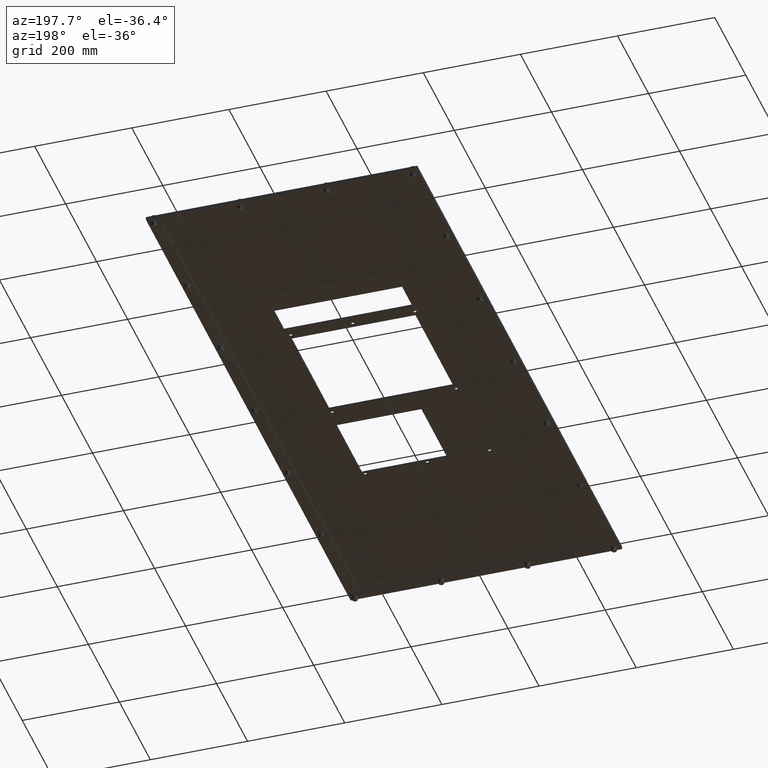
[diagram: clean part render]
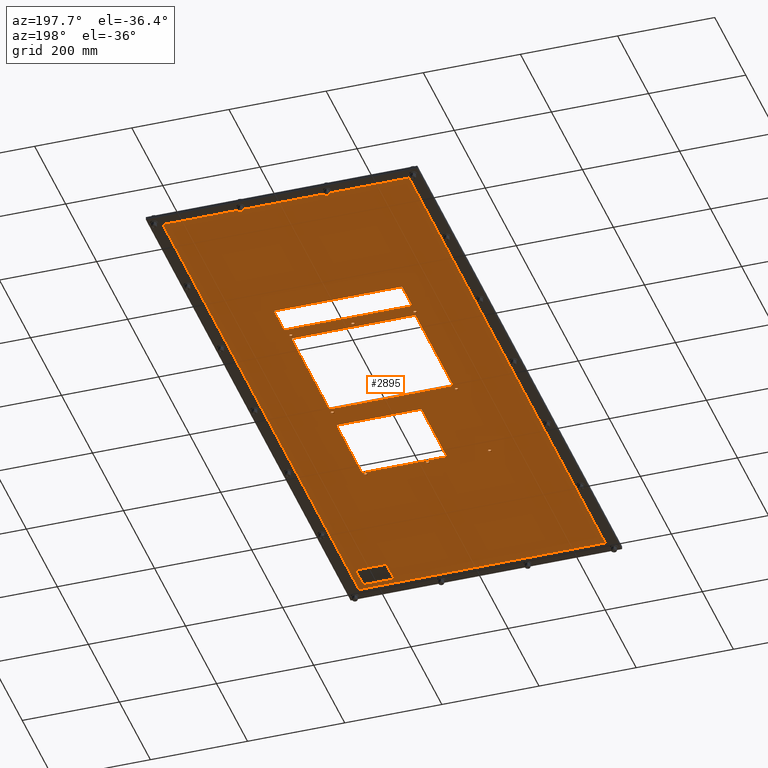
[diagram: same view with one face highlighted and labeled with its STEP entity id]
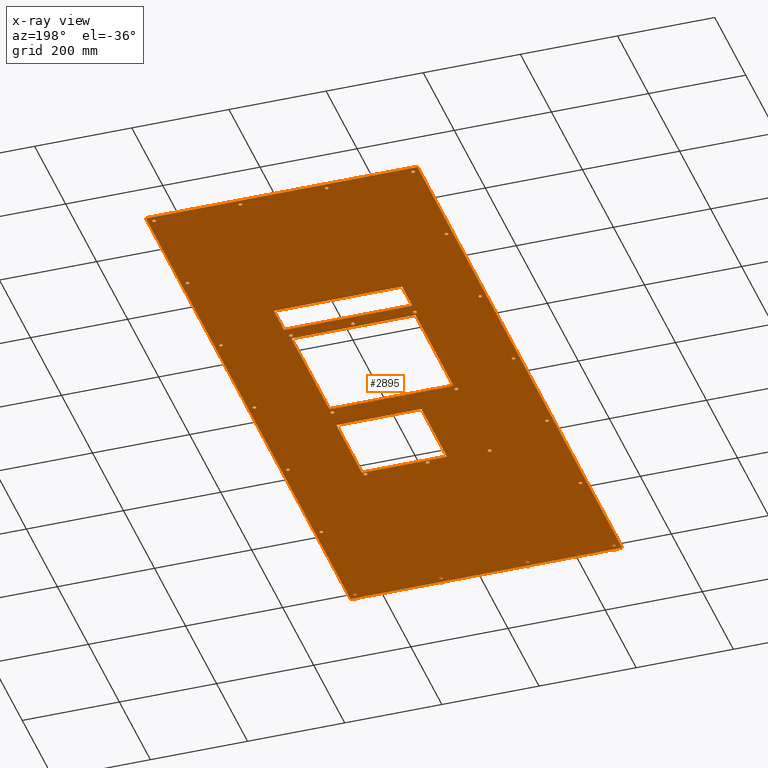
[diagram: x-ray of the same camera — body ghosted, the highlighted face saturated]
A machine part, auxiliary view. The second image highlights one B-rep face of the part: STEP entity #2895.
The next image is the same camera in x-ray: the body ghosted, the highlighted face saturated — about 0% of this face is hidden behind the body in this view.
In plain terms, the highlighted planar face has unit normal (0, 0, 1).
Its self-contained STEP definition (entity closure, byte-faithful):
#228=FACE_BOUND('',#813,.T.);
#229=FACE_BOUND('',#814,.T.);
#230=FACE_BOUND('',#815,.T.);
#231=FACE_BOUND('',#816,.T.);
#232=FACE_BOUND('',#817,.T.);
#233=FACE_BOUND('',#818,.T.);
#234=FACE_BOUND('',#819,.T.);
#235=FACE_BOUND('',#820,.T.);
#236=FACE_BOUND('',#821,.T.);
#237=FACE_BOUND('',#822,.T.);
#238=FACE_BOUND('',#823,.T.);
#239=FACE_BOUND('',#824,.T.);
#240=FACE_BOUND('',#825,.T.);
#241=FACE_BOUND('',#826,.T.);
#242=FACE_BOUND('',#827,.T.);
#243=FACE_BOUND('',#828,.T.);
#244=FACE_BOUND('',#829,.T.);
#245=FACE_BOUND('',#830,.T.);
#246=FACE_BOUND('',#831,.T.);
#247=FACE_BOUND('',#832,.T.);
#248=FACE_BOUND('',#833,.T.);
#249=FACE_BOUND('',#834,.T.);
#250=FACE_BOUND('',#835,.T.);
#251=FACE_BOUND('',#836,.T.);
#252=FACE_BOUND('',#837,.T.);
#253=FACE_BOUND('',#838,.T.);
#254=FACE_BOUND('',#839,.T.);
#255=FACE_BOUND('',#840,.T.);
#256=FACE_BOUND('',#841,.T.);
#345=CIRCLE('',#3034,0.15625);
#347=CIRCLE('',#3037,0.15625);
#349=CIRCLE('',#3040,0.15625);
#351=CIRCLE('',#3043,0.15625);
#353=CIRCLE('',#3046,0.15625);
#355=CIRCLE('',#3049,0.15625);
#357=CIRCLE('',#3052,0.15625);
#359=CIRCLE('',#3055,0.15625);
#362=CIRCLE('',#3059,0.140625);
#364=CIRCLE('',#3062,0.140625);
#366=CIRCLE('',#3065,0.140625);
#368=CIRCLE('',#3068,0.140625);
#370=CIRCLE('',#3071,0.140625);
#372=CIRCLE('',#3074,0.140625);
#374=CIRCLE('',#3077,0.140625);
#376=CIRCLE('',#3080,0.140625);
#378=CIRCLE('',#3083,0.140625);
#380=CIRCLE('',#3086,0.140625);
#382=CIRCLE('',#3089,0.140625);
#384=CIRCLE('',#3092,0.140625);
#386=CIRCLE('',#3095,0.140625);
#388=CIRCLE('',#3098,0.140625);
#390=CIRCLE('',#3101,0.140625);
#392=CIRCLE('',#3104,0.140625);
#394=CIRCLE('',#3107,0.140625);
#396=CIRCLE('',#3110,0.140625);
#596=FACE_OUTER_BOUND('',#812,.T.);
#812=EDGE_LOOP('',(#2132,#2133,#2134,#2135));
#813=EDGE_LOOP('',(#2136,#2137,#2138,#2139));
#814=EDGE_LOOP('',(#2140,#2141,#2142,#2143));
#815=EDGE_LOOP('',(#2144,#2145,#2146,#2147));
#816=EDGE_LOOP('',(#2148));
#817=EDGE_LOOP('',(#2149));
#818=EDGE_LOOP('',(#2150));
#819=EDGE_LOOP('',(#2151));
#820=EDGE_LOOP('',(#2152));
#821=EDGE_LOOP('',(#2153));
#822=EDGE_LOOP('',(#2154));
#823=EDGE_LOOP('',(#2155));
#824=EDGE_LOOP('',(#2156));
#825=EDGE_LOOP('',(#2157));
#826=EDGE_LOOP('',(#2158));
#827=EDGE_LOOP('',(#2159));
#828=EDGE_LOOP('',(#2160));
#829=EDGE_LOOP('',(#2161));
#830=EDGE_LOOP('',(#2162));
#831=EDGE_LOOP('',(#2163));
#832=EDGE_LOOP('',(#2164));
#833=EDGE_LOOP('',(#2165));
#834=EDGE_LOOP('',(#2166));
#835=EDGE_LOOP('',(#2167));
#836=EDGE_LOOP('',(#2168));
#837=EDGE_LOOP('',(#2169));
#838=EDGE_LOOP('',(#2170));
#839=EDGE_LOOP('',(#2171));
#840=EDGE_LOOP('',(#2172));
#841=EDGE_LOOP('',(#2173));
#1047=LINE('',#4206,#1212);
#1051=LINE('',#4214,#1216);
#1054=LINE('',#4220,#1219);
#1057=LINE('',#4225,#1222);
#1059=LINE('',#4230,#1224);
#1063=LINE('',#4238,#1228);
#1066=LINE('',#4244,#1231);
#1069=LINE('',#4249,#1234);
#1071=LINE('',#4254,#1236);
#1075=LINE('',#4262,#1240);
#1078=LINE('',#4268,#1243);
#1081=LINE('',#4273,#1246);
#1085=LINE('',#4412,#1250);
#1089=LINE('',#4419,#1254);
#1092=LINE('',#4425,#1257);
#1094=LINE('',#4428,#1259);
#1212=VECTOR('',#3363,9.65);
#1216=VECTOR('',#3369,10.06);
#1219=VECTOR('',#3374,9.65);
#1222=VECTOR('',#3379,10.06);
#1224=VECTOR('',#3383,6.5);
#1228=VECTOR('',#3389,6.9);
#1231=VECTOR('',#3394,6.5);
#1234=VECTOR('',#3399,6.9);
#1236=VECTOR('',#3403,2.6);
#1240=VECTOR('',#3409,10.39);
#1243=VECTOR('',#3414,2.6);
#1246=VECTOR('',#3419,10.39);
#1250=VECTOR('',#3581,52.);
#1254=VECTOR('',#3587,22.);
#1257=VECTOR('',#3592,52.);
#1259=VECTOR('',#3596,22.);
#1377=VERTEX_POINT('',#4204);
#1378=VERTEX_POINT('',#4205);
#1381=VERTEX_POINT('',#4213);
#1383=VERTEX_POINT('',#4219);
#1385=VERTEX_POINT('',#4228);
#1386=VERTEX_POINT('',#4229);
#1389=VERTEX_POINT('',#4237);
#1391=VERTEX_POINT('',#4243);
#1393=VERTEX_POINT('',#4252);
#1394=VERTEX_POINT('',#4253);
#1397=VERTEX_POINT('',#4261);
#1399=VERTEX_POINT('',#4267);
#1401=VERTEX_POINT('',#4276);
#1403=VERTEX_POINT('',#4281);
#1405=VERTEX_POINT('',#4286);
#1407=VERTEX_POINT('',#4291);
#1409=VERTEX_POINT('',#4296);
#1411=VERTEX_POINT('',#4301);
#1413=VERTEX_POINT('',#4306);
#1415=VERTEX_POINT('',#4311);
#1418=VERTEX_POINT('',#4318);
#1420=VERTEX_POINT('',#4323);
#1422=VERTEX_POINT('',#4328);
#1424=VERTEX_POINT('',#4333);
#1426=VERTEX_POINT('',#4338);
#1428=VERTEX_POINT('',#4343);
#1430=VERTEX_POINT('',#4348);
#1432=VERTEX_POINT('',#4353);
#1434=VERTEX_POINT('',#4358);
#1436=VERTEX_POINT('',#4363);
#1438=VERTEX_POINT('',#4368);
#1440=VERTEX_POINT('',#4373);
#1442=VERTEX_POINT('',#4378);
#1444=VERTEX_POINT('',#4383);
#1446=VERTEX_POINT('',#4388);
#1448=VERTEX_POINT('',#4393);
#1450=VERTEX_POINT('',#4398);
#1452=VERTEX_POINT('',#4403);
#1455=VERTEX_POINT('',#4409);
#1456=VERTEX_POINT('',#4411);
#1458=VERTEX_POINT('',#4417);
#1460=VERTEX_POINT('',#4423);
#1637=EDGE_CURVE('',#1377,#1378,#1047,.T.);
#1641=EDGE_CURVE('',#1378,#1381,#1051,.T.);
#1644=EDGE_CURVE('',#1381,#1383,#1054,.T.);
#1647=EDGE_CURVE('',#1383,#1377,#1057,.T.);
#1649=EDGE_CURVE('',#1385,#1386,#1059,.T.);
#1653=EDGE_CURVE('',#1386,#1389,#1063,.T.);
#1656=EDGE_CURVE('',#1389,#1391,#1066,.T.);
#1659=EDGE_CURVE('',#1391,#1385,#1069,.T.);
#1661=EDGE_CURVE('',#1393,#1394,#1071,.T.);
#1665=EDGE_CURVE('',#1394,#1397,#1075,.T.);
#1668=EDGE_CURVE('',#1397,#1399,#1078,.T.);
#1671=EDGE_CURVE('',#1399,#1393,#1081,.T.);
#1673=EDGE_CURVE('',#1401,#1401,#345,.T.);
#1675=EDGE_CURVE('',#1403,#1403,#347,.T.);
#1677=EDGE_CURVE('',#1405,#1405,#349,.T.);
#1679=EDGE_CURVE('',#1407,#1407,#351,.T.);
#1681=EDGE_CURVE('',#1409,#1409,#353,.T.);
#1683=EDGE_CURVE('',#1411,#1411,#355,.T.);
#1685=EDGE_CURVE('',#1413,#1413,#357,.T.);
#1687=EDGE_CURVE('',#1415,#1415,#359,.T.);
#1690=EDGE_CURVE('',#1418,#1418,#362,.T.);
#1692=EDGE_CURVE('',#1420,#1420,#364,.T.);
#1694=EDGE_CURVE('',#1422,#1422,#366,.T.);
#1696=EDGE_CURVE('',#1424,#1424,#368,.T.);
#1698=EDGE_CURVE('',#1426,#1426,#370,.T.);
#1700=EDGE_CURVE('',#1428,#1428,#372,.T.);
#1702=EDGE_CURVE('',#1430,#1430,#374,.T.);
#1704=EDGE_CURVE('',#1432,#1432,#376,.T.);
#1706=EDGE_CURVE('',#1434,#1434,#378,.T.);
#1708=EDGE_CURVE('',#1436,#1436,#380,.T.);
#1710=EDGE_CURVE('',#1438,#1438,#382,.T.);
#1712=EDGE_CURVE('',#1440,#1440,#384,.T.);
#1714=EDGE_CURVE('',#1442,#1442,#386,.T.);
#1716=EDGE_CURVE('',#1444,#1444,#388,.T.);
#1718=EDGE_CURVE('',#1446,#1446,#390,.T.);
#1720=EDGE_CURVE('',#1448,#1448,#392,.T.);
#1722=EDGE_CURVE('',#1450,#1450,#394,.T.);
#1724=EDGE_CURVE('',#1452,#1452,#396,.T.);
#1727=EDGE_CURVE('',#1456,#1455,#1085,.T.);
#1731=EDGE_CURVE('',#1455,#1458,#1089,.T.);
#1734=EDGE_CURVE('',#1458,#1460,#1092,.T.);
#1736=EDGE_CURVE('',#1460,#1456,#1094,.T.);
#2132=ORIENTED_EDGE('',*,*,#1736,.T.);
#2133=ORIENTED_EDGE('',*,*,#1727,.T.);
#2134=ORIENTED_EDGE('',*,*,#1731,.T.);
#2135=ORIENTED_EDGE('',*,*,#1734,.T.);
#2136=ORIENTED_EDGE('',*,*,#1637,.T.);
#2137=ORIENTED_EDGE('',*,*,#1641,.T.);
#2138=ORIENTED_EDGE('',*,*,#1644,.T.);
#2139=ORIENTED_EDGE('',*,*,#1647,.T.);
#2140=ORIENTED_EDGE('',*,*,#1649,.T.);
#2141=ORIENTED_EDGE('',*,*,#1653,.T.);
#2142=ORIENTED_EDGE('',*,*,#1656,.T.);
#2143=ORIENTED_EDGE('',*,*,#1659,.T.);
#2144=ORIENTED_EDGE('',*,*,#1661,.T.);
#2145=ORIENTED_EDGE('',*,*,#1665,.T.);
#2146=ORIENTED_EDGE('',*,*,#1668,.T.);
#2147=ORIENTED_EDGE('',*,*,#1671,.T.);
#2148=ORIENTED_EDGE('',*,*,#1673,.T.);
#2149=ORIENTED_EDGE('',*,*,#1675,.T.);
#2150=ORIENTED_EDGE('',*,*,#1677,.T.);
#2151=ORIENTED_EDGE('',*,*,#1679,.T.);
#2152=ORIENTED_EDGE('',*,*,#1681,.T.);
#2153=ORIENTED_EDGE('',*,*,#1683,.T.);
#2154=ORIENTED_EDGE('',*,*,#1685,.T.);
#2155=ORIENTED_EDGE('',*,*,#1687,.T.);
#2156=ORIENTED_EDGE('',*,*,#1690,.T.);
#2157=ORIENTED_EDGE('',*,*,#1692,.T.);
#2158=ORIENTED_EDGE('',*,*,#1694,.T.);
#2159=ORIENTED_EDGE('',*,*,#1696,.T.);
#2160=ORIENTED_EDGE('',*,*,#1698,.T.);
#2161=ORIENTED_EDGE('',*,*,#1700,.T.);
#2162=ORIENTED_EDGE('',*,*,#1702,.T.);
#2163=ORIENTED_EDGE('',*,*,#1704,.T.);
#2164=ORIENTED_EDGE('',*,*,#1706,.T.);
#2165=ORIENTED_EDGE('',*,*,#1708,.T.);
#2166=ORIENTED_EDGE('',*,*,#1710,.T.);
#2167=ORIENTED_EDGE('',*,*,#1712,.T.);
#2168=ORIENTED_EDGE('',*,*,#1714,.T.);
#2169=ORIENTED_EDGE('',*,*,#1716,.T.);
#2170=ORIENTED_EDGE('',*,*,#1718,.T.);
#2171=ORIENTED_EDGE('',*,*,#1720,.T.);
#2172=ORIENTED_EDGE('',*,*,#1722,.T.);
#2173=ORIENTED_EDGE('',*,*,#1724,.T.);
#2665=PLANE('',#3116);
#2895=ADVANCED_FACE('',(#596,#228,#229,#230,#231,#232,#233,#234,#235,#236,
#237,#238,#239,#240,#241,#242,#243,#244,#245,#246,#247,#248,#249,#250,#251,
#252,#253,#254,#255,#256),#2665,.F.);
#3034=AXIS2_PLACEMENT_3D('',#4277,#3423,#3424);
#3037=AXIS2_PLACEMENT_3D('',#4282,#3429,#3430);
#3040=AXIS2_PLACEMENT_3D('',#4287,#3435,#3436);
#3043=AXIS2_PLACEMENT_3D('',#4292,#3441,#3442);
#3046=AXIS2_PLACEMENT_3D('',#4297,#3447,#3448);
#3049=AXIS2_PLACEMENT_3D('',#4302,#3453,#3454);
#3052=AXIS2_PLACEMENT_3D('',#4307,#3459,#3460);
#3055=AXIS2_PLACEMENT_3D('',#4312,#3465,#3466);
#3059=AXIS2_PLACEMENT_3D('',#4319,#3473,#3474);
#3062=AXIS2_PLACEMENT_3D('',#4324,#3479,#3480);
#3065=AXIS2_PLACEMENT_3D('',#4329,#3485,#3486);
#3068=AXIS2_PLACEMENT_3D('',#4334,#3491,#3492);
#3071=AXIS2_PLACEMENT_3D('',#4339,#3497,#3498);
#3074=AXIS2_PLACEMENT_3D('',#4344,#3503,#3504);
#3077=AXIS2_PLACEMENT_3D('',#4349,#3509,#3510);
#3080=AXIS2_PLACEMENT_3D('',#4354,#3515,#3516);
#3083=AXIS2_PLACEMENT_3D('',#4359,#3521,#3522);
#3086=AXIS2_PLACEMENT_3D('',#4364,#3527,#3528);
#3089=AXIS2_PLACEMENT_3D('',#4369,#3533,#3534);
#3092=AXIS2_PLACEMENT_3D('',#4374,#3539,#3540);
#3095=AXIS2_PLACEMENT_3D('',#4379,#3545,#3546);
#3098=AXIS2_PLACEMENT_3D('',#4384,#3551,#3552);
#3101=AXIS2_PLACEMENT_3D('',#4389,#3557,#3558);
#3104=AXIS2_PLACEMENT_3D('',#4394,#3563,#3564);
#3107=AXIS2_PLACEMENT_3D('',#4399,#3569,#3570);
#3110=AXIS2_PLACEMENT_3D('',#4404,#3575,#3576);
#3116=AXIS2_PLACEMENT_3D('',#4430,#3599,#3600);
#3363=DIRECTION('',(2.89887289690384E-16,-1.,0.));
#3369=DIRECTION('',(1.,1.73795498602895E-16,0.));
#3374=DIRECTION('',(2.17415467267788E-16,1.,0.));
#3379=DIRECTION('',(-1.,0.,0.));
#3383=DIRECTION('',(4.30371130078801E-16,-1.,0.));
#3389=DIRECTION('',(1.,2.0271103952987E-16,0.));
#3394=DIRECTION('',(-2.151855650394E-16,1.,0.));
#3399=DIRECTION('',(-1.,-2.0271103952987E-16,0.));
#3403=DIRECTION('',(5.37963912598501E-16,-1.,0.));
#3409=DIRECTION('',(1.,0.,0.));
#3414=DIRECTION('',(-2.6898195629925E-16,1.,0.));
#3419=DIRECTION('',(-1.,-2.69240841723985E-16,0.));
#3423=DIRECTION('center_axis',(0.,0.,1.));
#3424=DIRECTION('ref_axis',(-1.,0.,0.));
#3429=DIRECTION('center_axis',(0.,0.,1.));
#3430=DIRECTION('ref_axis',(-1.,0.,0.));
#3435=DIRECTION('center_axis',(0.,0.,1.));
#3436=DIRECTION('ref_axis',(-1.,0.,0.));
#3441=DIRECTION('center_axis',(0.,0.,1.));
#3442=DIRECTION('ref_axis',(-1.,0.,0.));
#3447=DIRECTION('center_axis',(0.,0.,1.));
#3448=DIRECTION('ref_axis',(-1.,0.,0.));
#3453=DIRECTION('center_axis',(0.,0.,1.));
#3454=DIRECTION('ref_axis',(-1.,0.,0.));
#3459=DIRECTION('center_axis',(0.,0.,1.));
#3460=DIRECTION('ref_axis',(-1.,0.,0.));
#3465=DIRECTION('center_axis',(0.,0.,1.));
#3466=DIRECTION('ref_axis',(-1.,0.,0.));
#3473=DIRECTION('center_axis',(0.,0.,1.));
#3474=DIRECTION('ref_axis',(1.,0.,0.));
#3479=DIRECTION('center_axis',(0.,0.,1.));
#3480=DIRECTION('ref_axis',(1.,0.,0.));
#3485=DIRECTION('center_axis',(0.,0.,1.));
#3486=DIRECTION('ref_axis',(1.,0.,0.));
#3491=DIRECTION('center_axis',(0.,0.,1.));
#3492=DIRECTION('ref_axis',(1.,0.,0.));
#3497=DIRECTION('center_axis',(0.,0.,1.));
#3498=DIRECTION('ref_axis',(1.,0.,0.));
#3503=DIRECTION('center_axis',(0.,0.,1.));
#3504=DIRECTION('ref_axis',(1.,0.,0.));
#3509=DIRECTION('center_axis',(0.,0.,1.));
#3510=DIRECTION('ref_axis',(1.,0.,0.));
#3515=DIRECTION('center_axis',(0.,0.,1.));
#3516=DIRECTION('ref_axis',(1.,0.,0.));
#3521=DIRECTION('center_axis',(0.,0.,1.));
#3522=DIRECTION('ref_axis',(1.,0.,0.));
#3527=DIRECTION('center_axis',(0.,0.,1.));
#3528=DIRECTION('ref_axis',(1.,0.,0.));
#3533=DIRECTION('center_axis',(0.,0.,1.));
#3534=DIRECTION('ref_axis',(1.,0.,0.));
#3539=DIRECTION('center_axis',(0.,0.,1.));
#3540=DIRECTION('ref_axis',(1.,0.,0.));
#3545=DIRECTION('center_axis',(0.,0.,1.));
#3546=DIRECTION('ref_axis',(1.,0.,0.));
#3551=DIRECTION('center_axis',(0.,0.,1.));
#3552=DIRECTION('ref_axis',(1.,0.,0.));
#3557=DIRECTION('center_axis',(0.,0.,1.));
#3558=DIRECTION('ref_axis',(1.,0.,0.));
#3563=DIRECTION('center_axis',(0.,0.,1.));
#3564=DIRECTION('ref_axis',(1.,0.,0.));
#3569=DIRECTION('center_axis',(0.,0.,1.));
#3570=DIRECTION('ref_axis',(1.,0.,0.));
#3575=DIRECTION('center_axis',(0.,0.,1.));
#3576=DIRECTION('ref_axis',(1.,0.,0.));
#3581=DIRECTION('',(5.37963912598501E-17,-1.,0.));
#3587=DIRECTION('',(-1.,0.,0.));
#3592=DIRECTION('',(-2.151855650394E-16,1.,0.));
#3596=DIRECTION('',(1.,0.,0.));
#3599=DIRECTION('center_axis',(0.,0.,1.));
#3600=DIRECTION('ref_axis',(1.,0.,0.));
#4204=CARTESIAN_POINT('',(-5.,7.685,-4.37095678986282E-17));
#4205=CARTESIAN_POINT('',(-5.,-1.965,-4.37095678986282E-17));
#4206=CARTESIAN_POINT('',(-5.,3.8425,0.));
#4213=CARTESIAN_POINT('',(5.06,-1.965,-4.37095678986282E-17));
#4214=CARTESIAN_POINT('',(-2.5,-1.965,0.));
#4219=CARTESIAN_POINT('',(5.06000000000001,7.685,-4.37095678986282E-17));
#4220=CARTESIAN_POINT('',(5.06,-0.982500000000001,0.));
#4225=CARTESIAN_POINT('',(2.53,7.685,0.));
#4228=CARTESIAN_POINT('',(-1.72,-4.105,-2.18547839493141E-17));
#4229=CARTESIAN_POINT('',(-1.72,-10.605,-2.18547839493141E-17));
#4230=CARTESIAN_POINT('',(-1.72,-2.0525,0.));
#4237=CARTESIAN_POINT('',(5.18,-10.605,-2.18547839493141E-17));
#4238=CARTESIAN_POINT('',(-0.859999999999997,-10.605,0.));
#4243=CARTESIAN_POINT('',(5.18,-4.105,-2.18547839493141E-17));
#4244=CARTESIAN_POINT('',(5.18,-5.3025,0.));
#4249=CARTESIAN_POINT('',(2.59,-4.105,0.));
#4252=CARTESIAN_POINT('',(-5.14,11.525,0.));
#4253=CARTESIAN_POINT('',(-5.14,8.925,0.));
#4254=CARTESIAN_POINT('',(-5.14,5.7625,0.));
#4261=CARTESIAN_POINT('',(5.25,8.925,0.));
#4262=CARTESIAN_POINT('',(-2.57,8.925,0.));
#4267=CARTESIAN_POINT('',(5.25,11.525,0.));
#4268=CARTESIAN_POINT('',(5.25,4.4625,0.));
#4273=CARTESIAN_POINT('',(2.625,11.525,0.));
#4276=CARTESIAN_POINT('',(5.12624999999999,8.055,0.));
#4277=CARTESIAN_POINT('Origin',(4.96999999999999,8.055,0.));
#4281=CARTESIAN_POINT('',(0.0962499999999921,8.055,0.));
#4282=CARTESIAN_POINT('Origin',(-0.0600000000000082,8.055,0.));
#4286=CARTESIAN_POINT('',(-4.93375000000001,8.055,0.));
#4287=CARTESIAN_POINT('Origin',(-5.09000000000001,8.055,0.));
#4291=CARTESIAN_POINT('',(5.12625,-2.465,0.));
#4292=CARTESIAN_POINT('Origin',(4.97,-2.465,0.));
#4296=CARTESIAN_POINT('',(-4.93375,-2.465,0.));
#4297=CARTESIAN_POINT('Origin',(-5.09,-2.465,0.));
#4301=CARTESIAN_POINT('',(-4.93375,-10.885,0.));
#4302=CARTESIAN_POINT('Origin',(-5.09,-10.885,0.));
#4306=CARTESIAN_POINT('',(0.0962500000000033,-10.885,0.));
#4307=CARTESIAN_POINT('Origin',(-0.0599999999999971,-10.885,0.));
#4311=CARTESIAN_POINT('',(5.12625,-10.885,0.));
#4312=CARTESIAN_POINT('Origin',(4.97,-10.885,0.));
#4318=CARTESIAN_POINT('',(10.640625,-25.5,0.));
#4319=CARTESIAN_POINT('Origin',(10.5,-25.5,0.));
#4323=CARTESIAN_POINT('',(3.640625,-25.5,0.));
#4324=CARTESIAN_POINT('Origin',(3.5,-25.5,0.));
#4328=CARTESIAN_POINT('',(-3.359375,-25.5,0.));
#4329=CARTESIAN_POINT('Origin',(-3.5,-25.5,0.));
#4333=CARTESIAN_POINT('',(-10.359375,-25.5,0.));
#4334=CARTESIAN_POINT('Origin',(-10.5,-25.5,0.));
#4338=CARTESIAN_POINT('',(10.640625,-17.,0.));
#4339=CARTESIAN_POINT('Origin',(10.5,-17.,0.));
#4343=CARTESIAN_POINT('',(-10.359375,-17.,0.));
#4344=CARTESIAN_POINT('Origin',(-10.5,-17.,0.));
#4348=CARTESIAN_POINT('',(10.640625,-8.5,0.));
#4349=CARTESIAN_POINT('Origin',(10.5,-8.5,0.));
#4353=CARTESIAN_POINT('',(-10.359375,-8.5,0.));
#4354=CARTESIAN_POINT('Origin',(-10.5,-8.5,0.));
#4358=CARTESIAN_POINT('',(10.640625,0.,0.));
#4359=CARTESIAN_POINT('Origin',(10.5,0.,0.));
#4363=CARTESIAN_POINT('',(-10.359375,0.,0.));
#4364=CARTESIAN_POINT('Origin',(-10.5,0.,0.));
#4368=CARTESIAN_POINT('',(10.640625,8.5,0.));
#4369=CARTESIAN_POINT('Origin',(10.5,8.5,0.));
#4373=CARTESIAN_POINT('',(-10.359375,8.5,0.));
#4374=CARTESIAN_POINT('Origin',(-10.5,8.5,0.));
#4378=CARTESIAN_POINT('',(10.640625,17.,0.));
#4379=CARTESIAN_POINT('Origin',(10.5,17.,0.));
#4383=CARTESIAN_POINT('',(-10.359375,17.,0.));
#4384=CARTESIAN_POINT('Origin',(-10.5,17.,0.));
#4388=CARTESIAN_POINT('',(10.640625,25.5,0.));
#4389=CARTESIAN_POINT('Origin',(10.5,25.5,0.));
#4393=CARTESIAN_POINT('',(3.64062499999999,25.5,0.));
#4394=CARTESIAN_POINT('Origin',(3.49999999999999,25.5,0.));
#4398=CARTESIAN_POINT('',(-3.35937500000001,25.5,0.));
#4399=CARTESIAN_POINT('Origin',(-3.50000000000001,25.5,0.));
#4403=CARTESIAN_POINT('',(-10.359375,25.5,0.));
#4404=CARTESIAN_POINT('Origin',(-10.5,25.5,0.));
#4409=CARTESIAN_POINT('',(11.,-26.,0.));
#4411=CARTESIAN_POINT('',(11.,26.,0.));
#4412=CARTESIAN_POINT('',(11.,26.,0.));
#4417=CARTESIAN_POINT('',(-11.,-26.,0.));
#4419=CARTESIAN_POINT('',(11.,-26.,0.));
#4423=CARTESIAN_POINT('',(-11.,26.,0.));
#4425=CARTESIAN_POINT('',(-11.,-26.,0.));
#4428=CARTESIAN_POINT('',(-11.,26.,0.));
#4430=CARTESIAN_POINT('Origin',(0.,1.93481959523756E-15,0.));